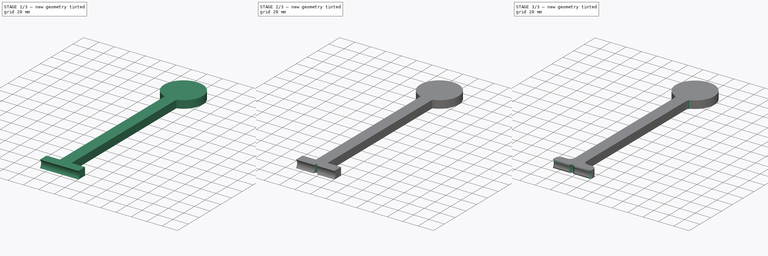
[diagram: build sequence overview — one tinted view per stage of 3, left to right]
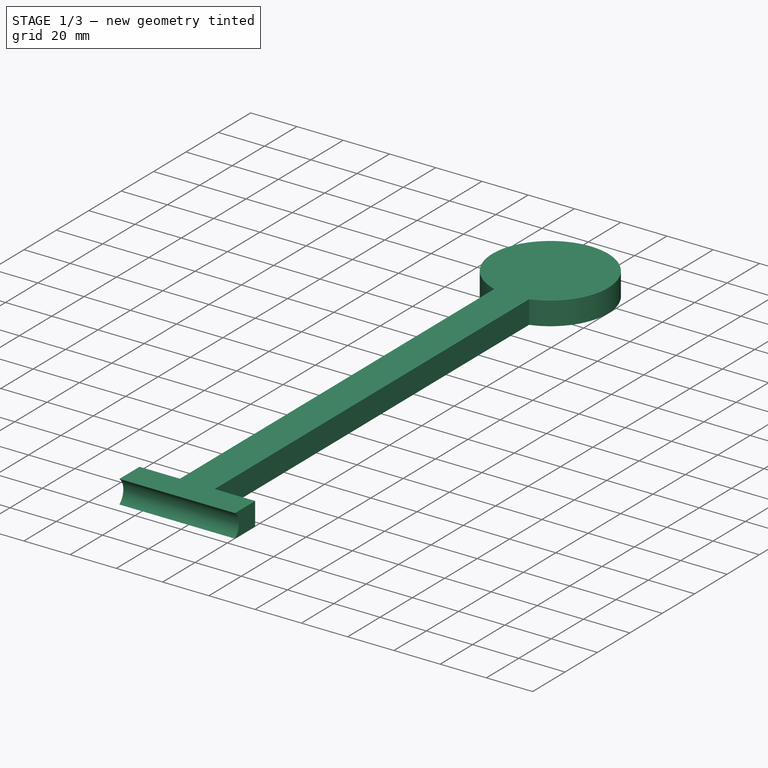
[diagram: stage 1 of 3 — iso view after this stage's code; geometry added in this stage tinted green]
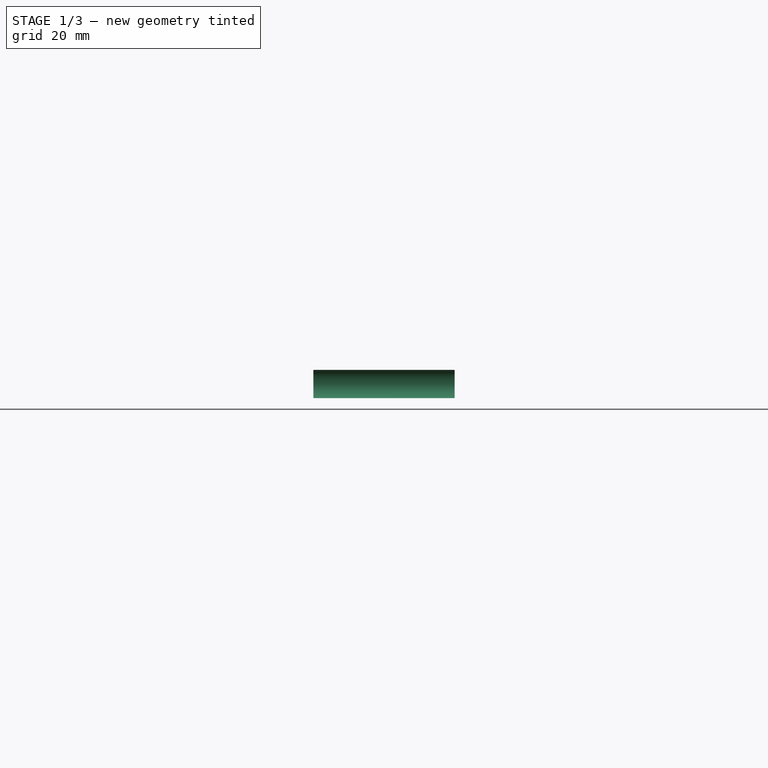
[diagram: stage 1 of 3 — front view after this stage's code; geometry added in this stage tinted green]
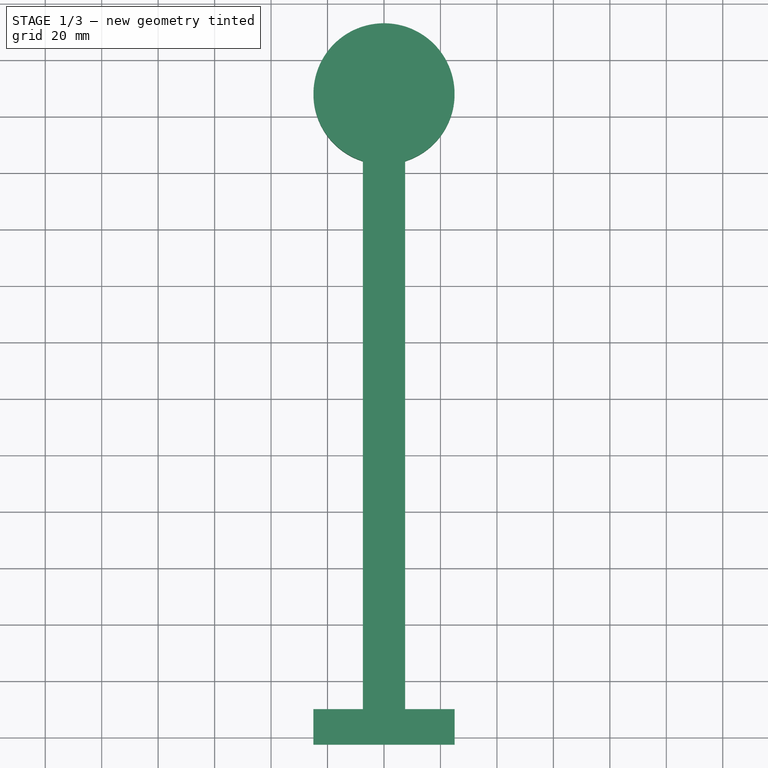
[diagram: stage 1 of 3 — top view after this stage's code; geometry added in this stage tinted green]
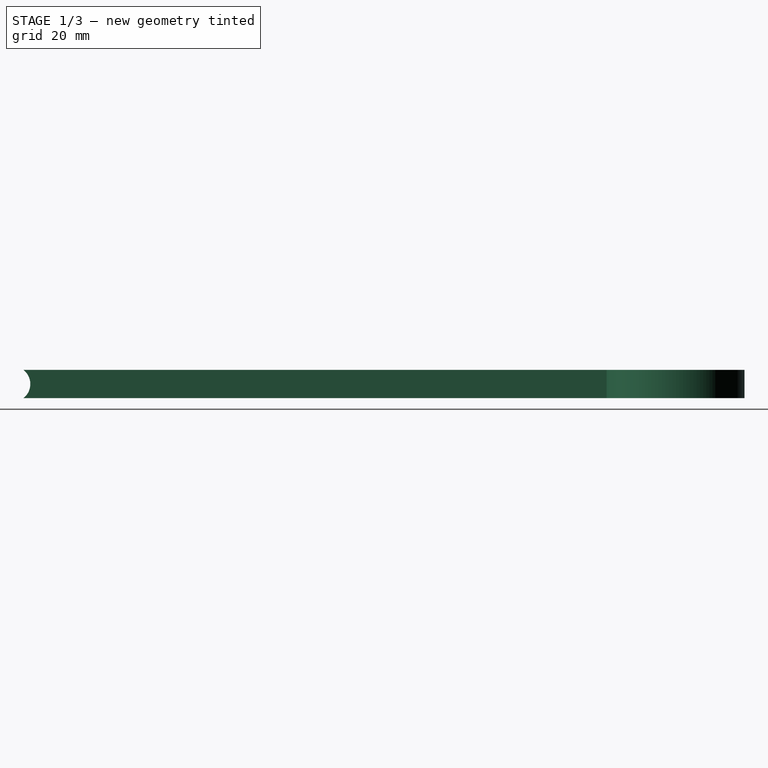
[diagram: stage 1 of 3 — right view after this stage's code; geometry added in this stage tinted green]
FCSTD DOCUMENT  (FreeCAD 0.16R)
Label: TireSpacer50mm
License: All rights reserved
LicenseURL: http://en.wikipedia.org/wiki/All_rights_reserved
objects: Sketcher::SketchObject×3, PartDesign::Pocket×2, PartDesign::Pad×1, PartDesign::Chamfer×1, PartDesign::Fillet×1
note: 11 computed .brp shape members not serialized (recipe doc carries the construction recipe); baked Part::Feature solids carry a one-line shape summary decoded from their .brp

FEATURE [Sketcher::SketchObject] Sketch
  sketch-geometry (9):
    g0: ArcOfCircle CenterX=0 CenterY=228 CenterZ=0 NormalX=0 NormalY=0 NormalZ=1 Radius=25 StartAngle=5.01708 EndAngle=10.6909
    g1: LineSegment [constr] StartX=-40 StartY=253 StartZ=0 EndX=40 EndY=253 EndZ=0
    g2: LineSegment StartX=-7.5 StartY=204.152 StartZ=0 EndX=-7.5 EndY=10 EndZ=0
    g3: LineSegment StartX=7.5 StartY=204.152 StartZ=0 EndX=7.5 EndY=10 EndZ=0
    g4: LineSegment StartX=25 StartY=10 StartZ=0 EndX=25 EndY=-5 EndZ=0
    g5: LineSegment StartX=25 StartY=-5 StartZ=0 EndX=-25 EndY=-5 EndZ=0
    g6: LineSegment StartX=-25 StartY=-5 StartZ=0 EndX=-25 EndY=10 EndZ=0
    g7: LineSegment StartX=-25 StartY=10 StartZ=0 EndX=-7.5 EndY=10 EndZ=0
    g8: LineSegment StartX=7.5 StartY=10 StartZ=0 EndX=25 EndY=10 EndZ=0
  constraints (28):
    c: Radius(g0) = 25
    c: Tangent(g1,g0)
    c: Horizontal(g1)
    c: Symmetric(g1,g1,g-2)
    c: PointOnObject(g0,g-2)
    c: DistanceY(g1) = 253
    c: Vertical(g2)
    c: Vertical(g3)
    c: Coincident(g4,g5)
    c: Coincident(g5,g6)
    c: Horizontal(g5)
    c: Vertical(g4)
    c: Vertical(g6)
    c: Symmetric(g4,g6,g-2)
    c: Coincident(g7,g6)
    c: Coincident(g7,g2)
    c: Coincident(g8,g3)
    c: Coincident(g8,g4)
    c: Horizontal(g7)
    c: Horizontal(g8)
    c: Distance(g4,g6) = 50
    c: DistanceY(g4) = -5
    c: Coincident(g0,g3)
    c: Coincident(g0,g2)
    c: Symmetric(g0,g0,g-2)
    c: Distance(g0,g0) = 15
    c: DistanceY(g4) = 10
    c: Distance(g1) = 80
FEATURE [PartDesign::Pad] Pad
  Length = 10
  Length2 = 100
  Midplane = true
  Sketch = -> Sketch
  Type = 0
FEATURE [Sketcher::SketchObject] Sketch001
  Placement = pos=(-25,0,0) rot=(0.57735,-0.57735,-0.57735;2.0944rad)
  Support = -> Pad [Face5]
  sketch-geometry (1):
    g0: Circle CenterX=6.35 CenterY=0 CenterZ=0 NormalX=0 NormalY=0 NormalZ=1 Radius=6.35
  constraints (3):
    c: Radius(g0) = 6.35
    c: Tangent(g0,g-2)
    c: PointOnObject(g0,g-1)
FEATURE [PartDesign::Pocket] Pocket
  Length = 5
  Sketch = -> Sketch001
  Type = 1
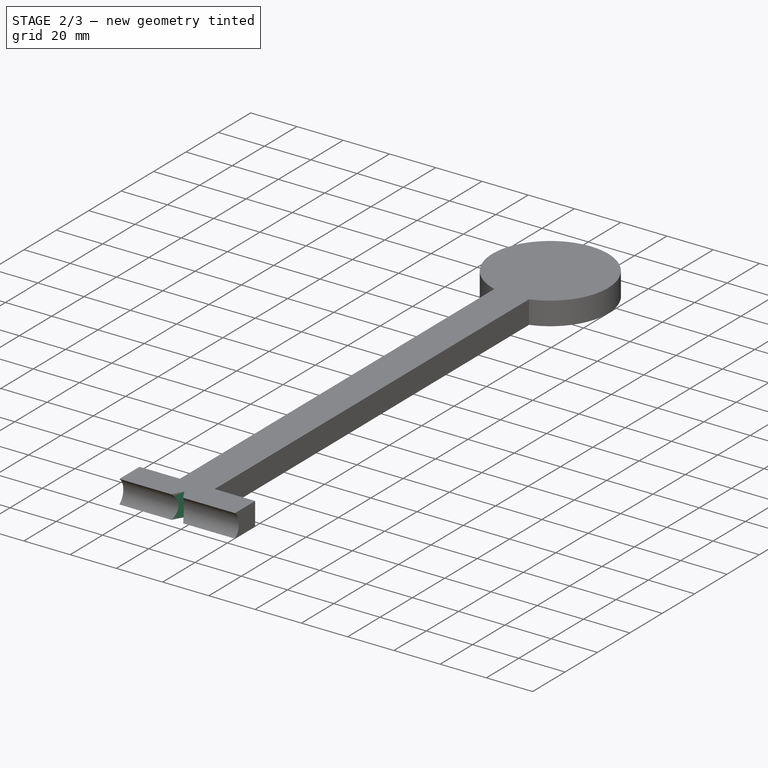
[diagram: stage 2 of 3 — iso view after this stage's code; geometry added in this stage tinted green]
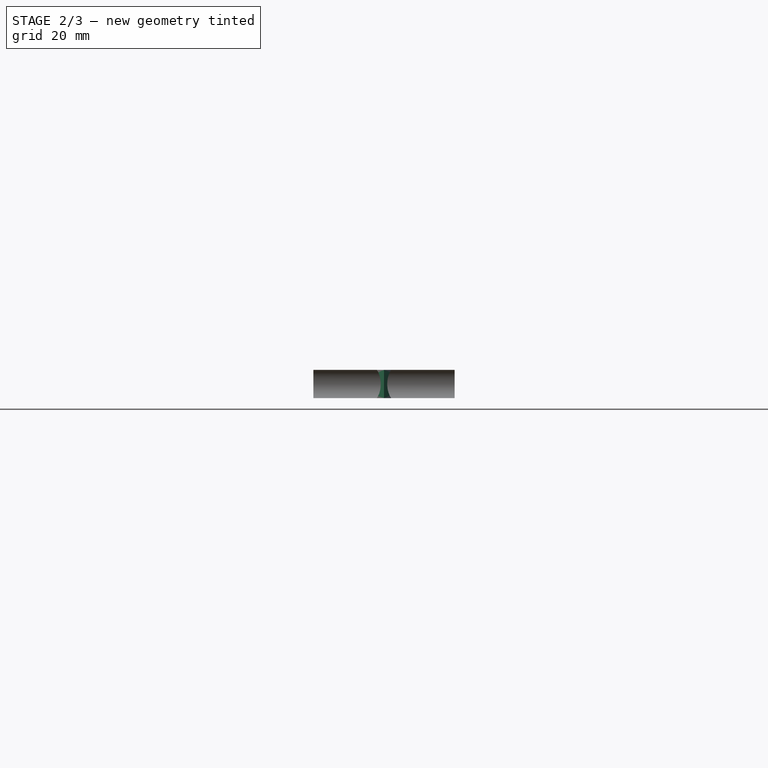
[diagram: stage 2 of 3 — front view after this stage's code; geometry added in this stage tinted green]
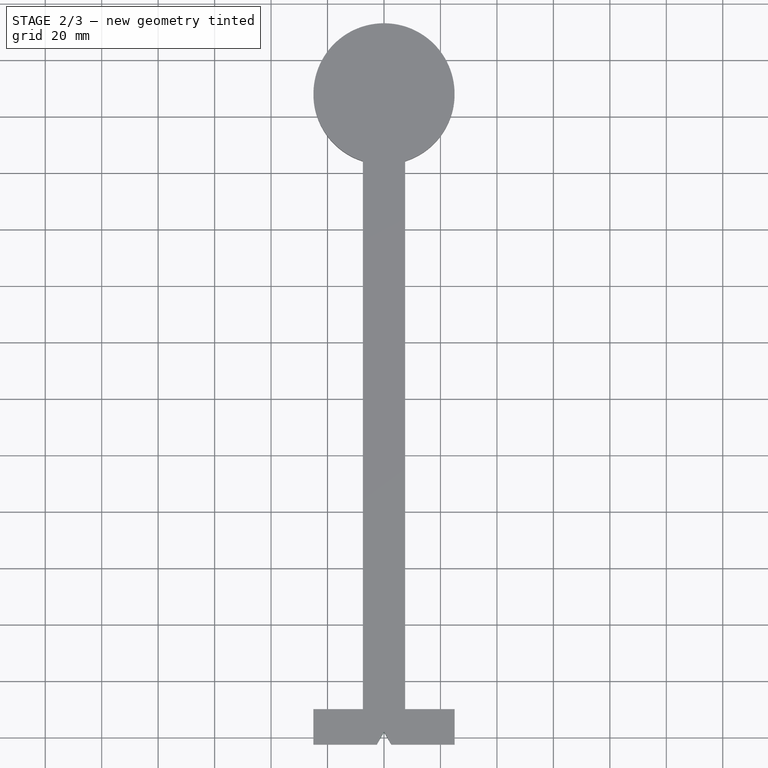
[diagram: stage 2 of 3 — top view after this stage's code; geometry added in this stage tinted green]
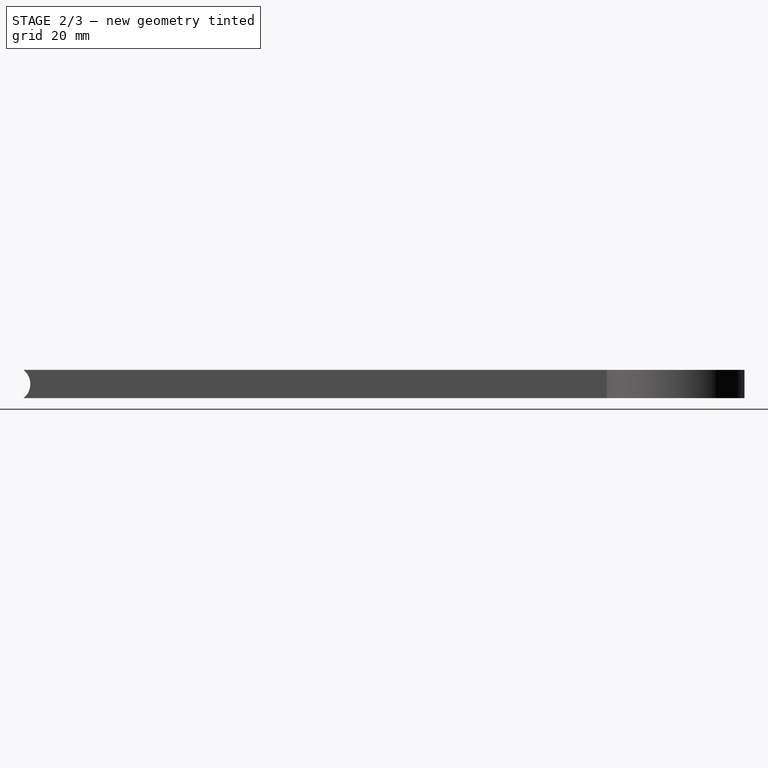
[diagram: stage 2 of 3 — right view after this stage's code; geometry added in this stage tinted green]
FEATURE [Sketcher::SketchObject] Sketch002
  Placement = pos=(0,0,5) rot=(0,0,1;0rad)
  Support = -> Pocket [Face5]
  sketch-geometry (3):
    g0: LineSegment StartX=0 StartY=2 StartZ=0 EndX=-10 EndY=-15.3205 EndZ=0
    g1: LineSegment StartX=-10 StartY=-15.3205 StartZ=0 EndX=10 EndY=-15.3205 EndZ=0
    g2: LineSegment StartX=10 StartY=-15.3205 StartZ=0 EndX=0 EndY=2 EndZ=0
  constraints (10):
    c: PointOnObject(g0,g-2)
    c: Coincident(g0,g1)
    c: Horizontal(g1)
    c: Coincident(g1,g2)
    c: Coincident(g2,g0)
    c: DistanceY(g0) = 2
    c: Equal(g2,g0)
    c: Symmetric(g1,g0,g-2)
    c: Distance(g1) = 20
    c: Distance(g2) = 20
FEATURE [PartDesign::Pocket] Pocket001
  Length = 5
  Sketch = -> Sketch002
  Type = 1
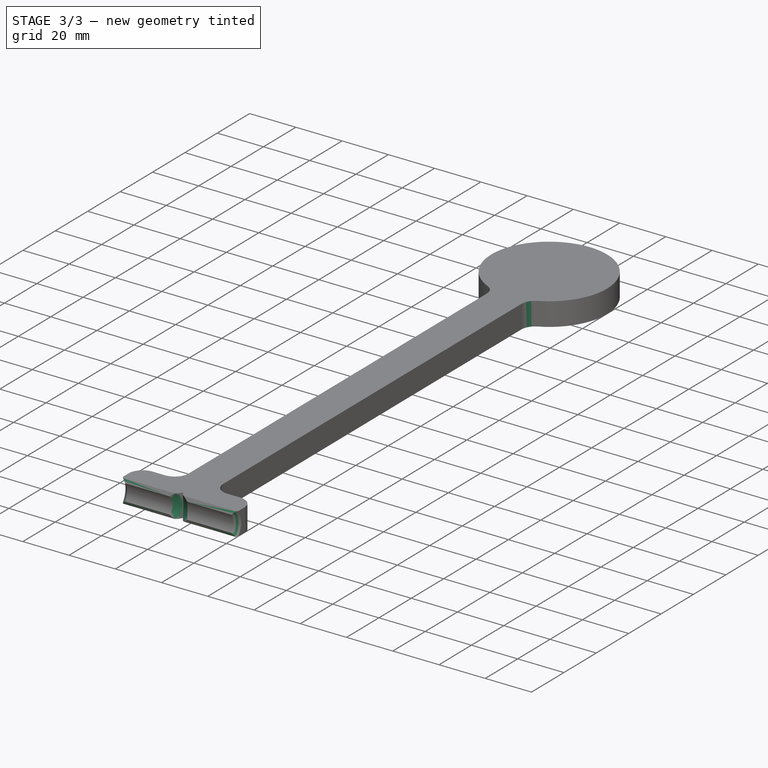
[diagram: stage 3 of 3 — iso view after this stage's code; geometry added in this stage tinted green]
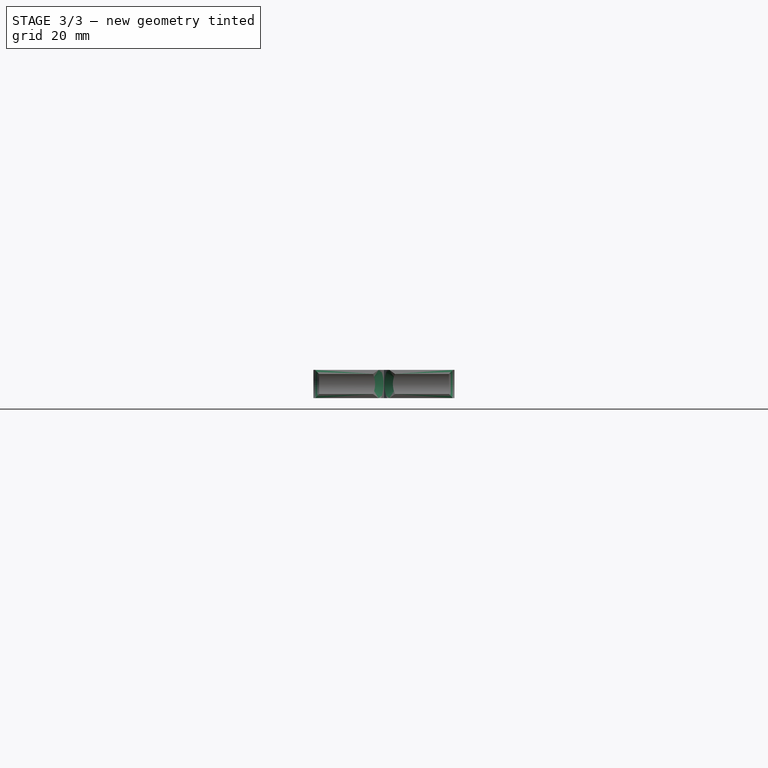
[diagram: stage 3 of 3 — front view after this stage's code; geometry added in this stage tinted green]
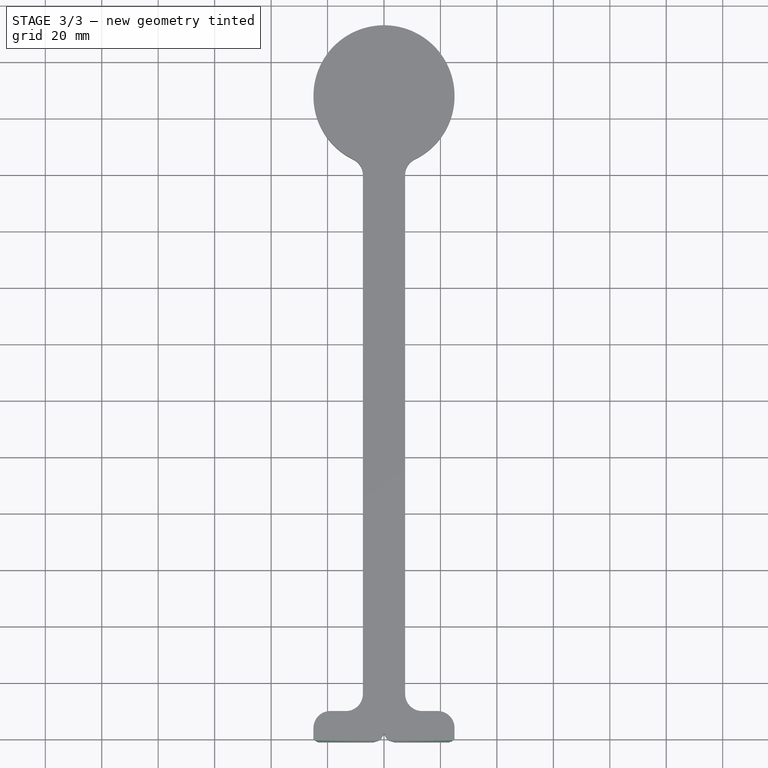
[diagram: stage 3 of 3 — top view after this stage's code; geometry added in this stage tinted green]
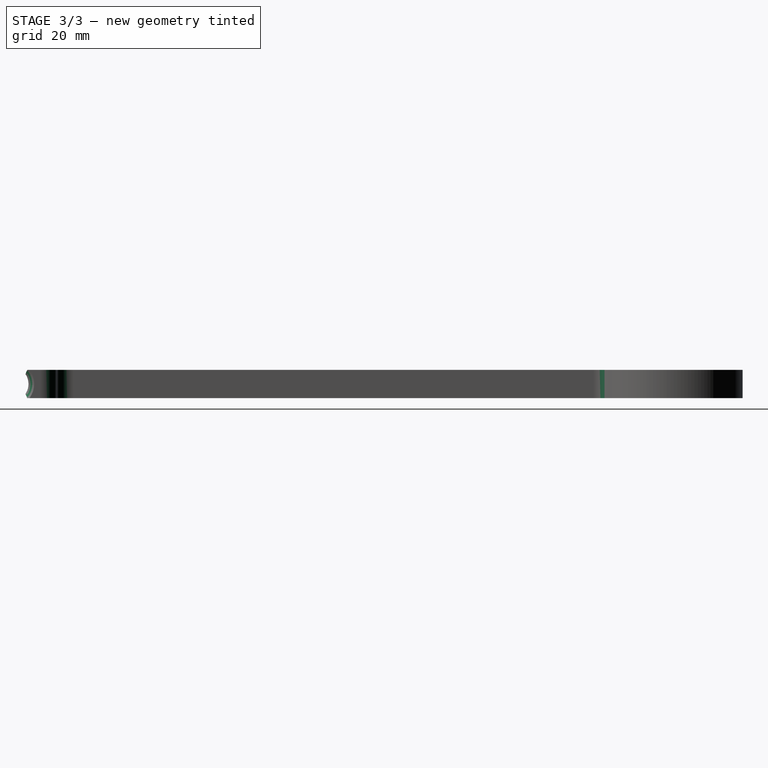
[diagram: stage 3 of 3 — right view after this stage's code; geometry added in this stage tinted green]
FEATURE [PartDesign::Chamfer] Chamfer
  Base = -> Pocket001 [Edge20,Edge23,Edge32,Edge31,Edge29,Edge28,Edge12,Edge15]
  Size = 2
FEATURE [PartDesign::Fillet] Fillet
  Base = -> Chamfer [Edge17,Edge23,Edge37,Edge41,Edge27,Edge33]
  Radius = 6
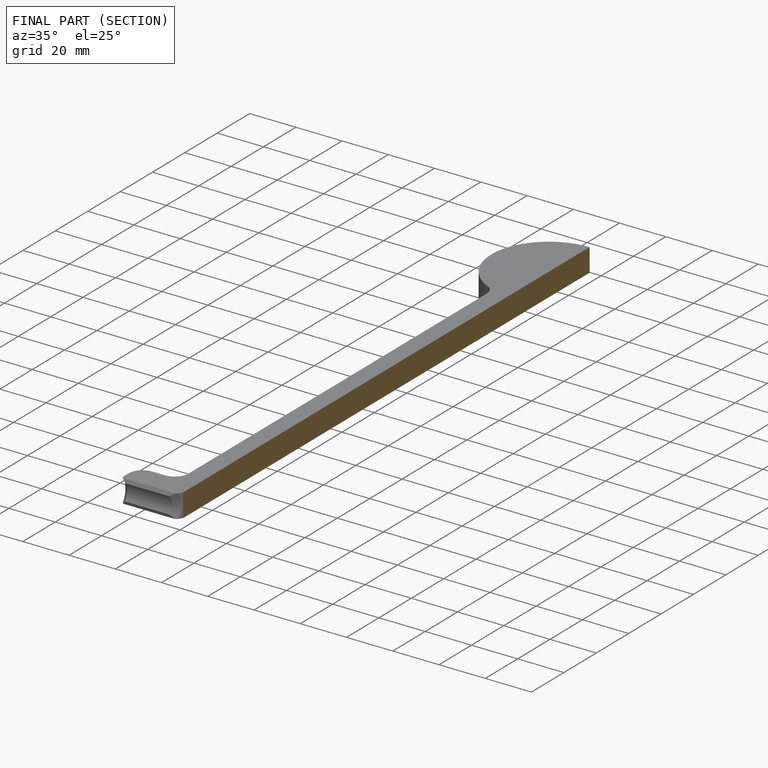
[diagram: finished part — half-section view (interior)]
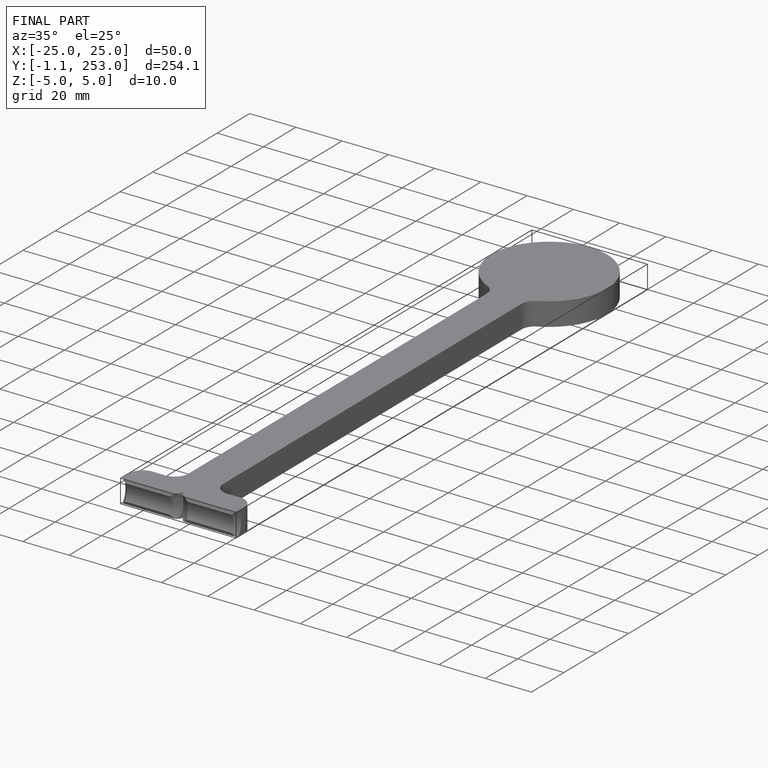
[diagram: finished part — iso view with bounding-box wireframe]
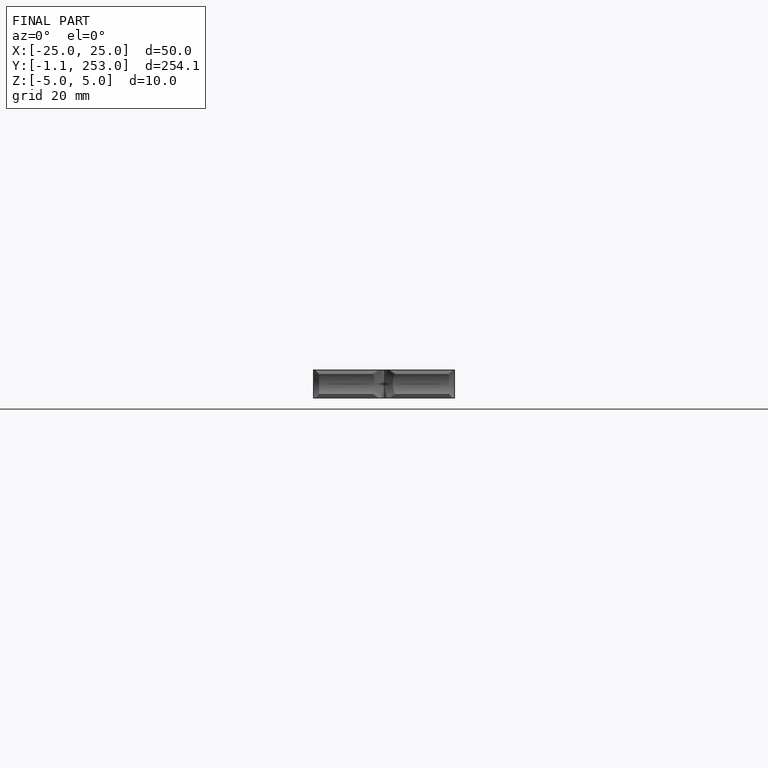
[diagram: finished part — front view with bounding-box wireframe]
